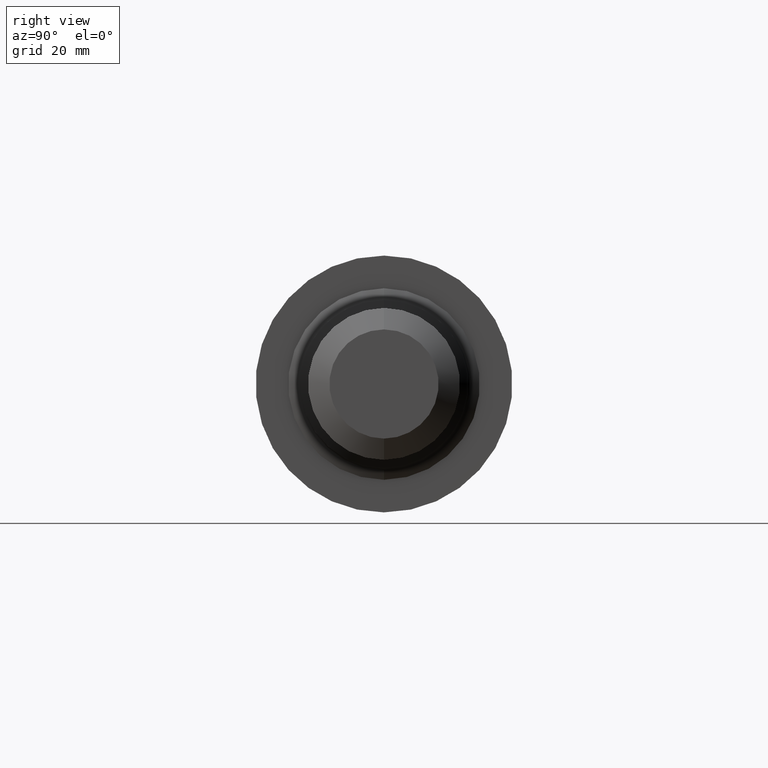
[diagram: clean part render]
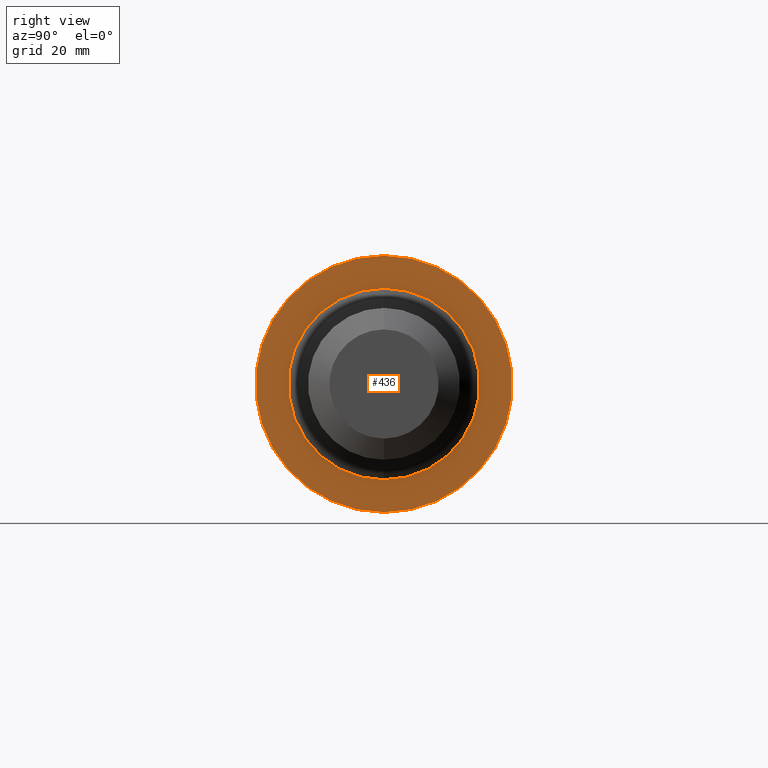
[diagram: same view with one face highlighted and labeled with its STEP entity id]
A machine part, right view. The second image highlights one B-rep face of the part: STEP entity #436.
In plain terms, the highlighted planar face has unit normal (-1, 0, -0).
Its self-contained STEP definition (entity closure, byte-faithful):
#19 = CARTESIAN_POINT ( 'NONE',  ( 2.955999999999999961, 0.000000000000000000, 0.6209999999999999964 ) ) ;
#39 = FACE_OUTER_BOUND ( 'NONE', #821, .T. ) ;
#40 = ORIENTED_EDGE ( 'NONE', *, *, #359, .F. ) ;
#50 = DIRECTION ( 'NONE',  ( -1.000000000000000000, 0.000000000000000000, -0.000000000000000000 ) ) ;
#71 = AXIS2_PLACEMENT_3D ( 'NONE', #545, #225, #612 ) ;
#83 = DIRECTION ( 'NONE',  ( -1.000000000000000000, -0.000000000000000000, -0.000000000000000000 ) ) ;
#117 = ORIENTED_EDGE ( 'NONE', *, *, #141, .T. ) ;
#119 = CIRCLE ( 'NONE', #385, 0.8325000000000000178 ) ;
#134 = AXIS2_PLACEMENT_3D ( 'NONE', #367, #784, #530 ) ;
#141 = EDGE_CURVE ( 'NONE', #673, #560, #589, .T. ) ;
#164 = FACE_BOUND ( 'NONE', #352, .T. ) ;
#168 = ORIENTED_EDGE ( 'NONE', *, *, #316, .F. ) ;
#217 = AXIS2_PLACEMENT_3D ( 'NONE', #233, #50, #299 ) ;
#225 = DIRECTION ( 'NONE',  ( -1.000000000000000000, -0.000000000000000000, -0.000000000000000000 ) ) ;
#231 = ORIENTED_EDGE ( 'NONE', *, *, #501, .T. ) ;
#233 = CARTESIAN_POINT ( 'NONE',  ( 2.955999999999999961, 0.8325000000000000178, 0.000000000000000000 ) ) ;
#299 = DIRECTION ( 'NONE',  ( -0.000000000000000000, 0.000000000000000000, 1.000000000000000000 ) ) ;
#316 = EDGE_CURVE ( 'NONE', #793, #809, #519, .T. ) ;
#334 = DIRECTION ( 'NONE',  ( 0.000000000000000000, 0.000000000000000000, 1.000000000000000000 ) ) ;
#352 = EDGE_LOOP ( 'NONE', ( #117, #231 ) ) ;
#359 = EDGE_CURVE ( 'NONE', #809, #793, #119, .T. ) ;
#367 = CARTESIAN_POINT ( 'NONE',  ( 2.955999999999999961, 0.000000000000000000, 0.000000000000000000 ) ) ;
#385 = AXIS2_PLACEMENT_3D ( 'NONE', #708, #517, #394 ) ;
#394 = DIRECTION ( 'NONE',  ( 0.000000000000000000, 0.000000000000000000, 1.000000000000000000 ) ) ;
#407 = CARTESIAN_POINT ( 'NONE',  ( 2.955999999999999961, 1.019518460290171568E-16, -0.8325000000000000178 ) ) ;
#436 = ADVANCED_FACE ( 'NONE', ( #39, #164 ), #665, .F. ) ;
#501 = EDGE_CURVE ( 'NONE', #560, #673, #670, .T. ) ;
#517 = DIRECTION ( 'NONE',  ( -1.000000000000000000, -0.000000000000000000, -0.000000000000000000 ) ) ;
#519 = CIRCLE ( 'NONE', #134, 0.8325000000000000178 ) ;
#530 = DIRECTION ( 'NONE',  ( 0.000000000000000000, 0.000000000000000000, 1.000000000000000000 ) ) ;
#545 = CARTESIAN_POINT ( 'NONE',  ( 2.955999999999999961, 0.000000000000000000, 0.000000000000000000 ) ) ;
#560 = VERTEX_POINT ( 'NONE', #632 ) ;
#589 = CIRCLE ( 'NONE', #640, 0.6209999999999999964 ) ;
#612 = DIRECTION ( 'NONE',  ( 0.000000000000000000, 0.000000000000000000, 1.000000000000000000 ) ) ;
#632 = CARTESIAN_POINT ( 'NONE',  ( 2.955999999999999961, 7.605056622705062601E-17, -0.6209999999999999964 ) ) ;
#640 = AXIS2_PLACEMENT_3D ( 'NONE', #654, #83, #334 ) ;
#654 = CARTESIAN_POINT ( 'NONE',  ( 2.955999999999999961, 0.000000000000000000, 0.000000000000000000 ) ) ;
#665 = PLANE ( 'NONE',  #217 ) ;
#670 = CIRCLE ( 'NONE', #71, 0.6209999999999999964 ) ;
#673 = VERTEX_POINT ( 'NONE', #19 ) ;
#699 = CARTESIAN_POINT ( 'NONE',  ( 2.955999999999999961, 0.000000000000000000, 0.8325000000000000178 ) ) ;
#708 = CARTESIAN_POINT ( 'NONE',  ( 2.955999999999999961, 0.000000000000000000, 0.000000000000000000 ) ) ;
#784 = DIRECTION ( 'NONE',  ( -1.000000000000000000, -0.000000000000000000, -0.000000000000000000 ) ) ;
#793 = VERTEX_POINT ( 'NONE', #407 ) ;
#809 = VERTEX_POINT ( 'NONE', #699 ) ;
#821 = EDGE_LOOP ( 'NONE', ( #40, #168 ) ) ;